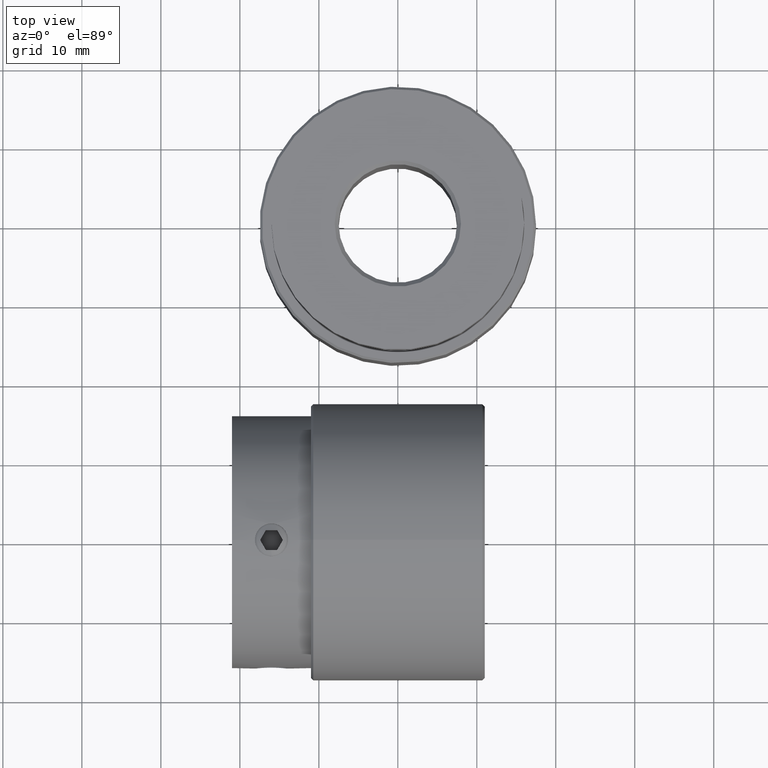
[diagram: clean part render]
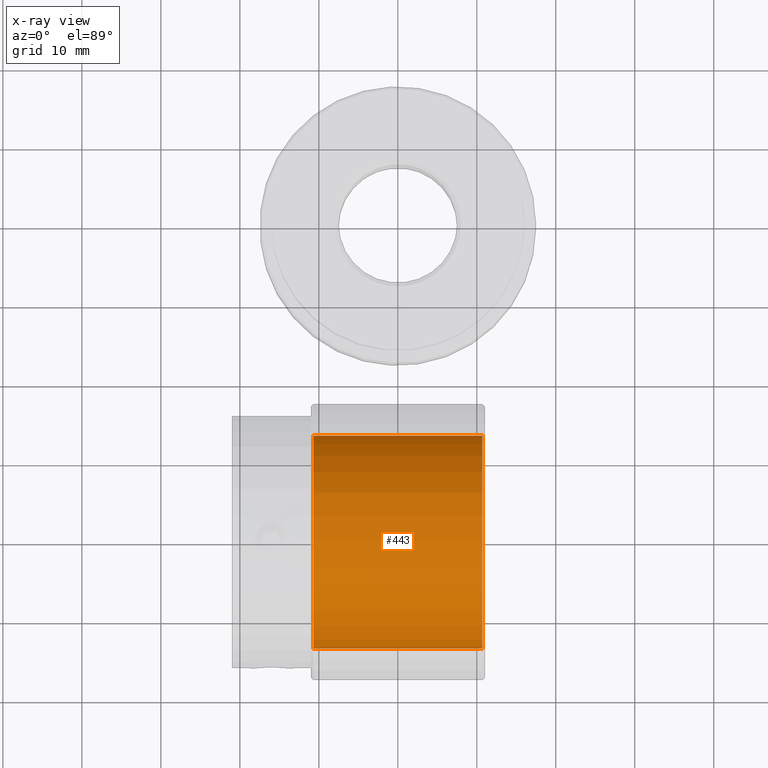
[diagram: x-ray — body ghosted, one internal face saturated and labeled with its STEP entity id]
A machine part, top view, then the same camera in x-ray: the body is ghosted and one INTERNAL B-rep face — a face not visible from any outside direction — is saturated and labeled: STEP entity #443.
In plain terms, the highlighted cylindrical surface (bore or boss wall) has radius 13.5 mm, axis along (1, -0, -0).
Its self-contained STEP definition (entity closure, byte-faithful):
#443 = ADVANCED_FACE( '', ( #593, #594 ), #595, .F. );
#593 = FACE_OUTER_BOUND( '', #793, .T. );
#594 = FACE_OUTER_BOUND( '', #794, .T. );
#595 = CYLINDRICAL_SURFACE( '', #795, 13.5000000000000 );
#793 = EDGE_LOOP( '', ( #1057 ) );
#794 = EDGE_LOOP( '', ( #1058 ) );
#795 = AXIS2_PLACEMENT_3D( '', #1059, #1060, #1061 );
#1057 = ORIENTED_EDGE( '', *, *, #1352, .T. );
#1058 = ORIENTED_EDGE( '', *, *, #1353, .T. );
#1059 = CARTESIAN_POINT( '', ( 11.0000000000000, -40.0000000000000, 11.0000000000000 ) );
#1060 = DIRECTION( '', ( 1.00000000000000, -0.000000000000000, -6.12323399573677E-017 ) );
#1061 = DIRECTION( '', ( 6.12323399573677E-017, 0.000000000000000, 1.00000000000000 ) );
#1352 = EDGE_CURVE( '', #1497, #1497, #1498, .T. );
#1353 = EDGE_CURVE( '', #1499, #1499, #1500, .F. );
#1497 = VERTEX_POINT( '', #2129 );
#1498 = CIRCLE( '', #2130, 13.5000000000000 );
#1499 = VERTEX_POINT( '', #2131 );
#1500 = CIRCLE( '', #2132, 13.5000000000000 );
#2129 = CARTESIAN_POINT( '', ( -10.7000000000000, -40.0000000000000, 24.5000000000000 ) );
#2130 = AXIS2_PLACEMENT_3D( '', #2460, #2461, #2462 );
#2131 = CARTESIAN_POINT( '', ( 10.7000000000000, -40.0000000000000, 24.5000000000000 ) );
#2132 = AXIS2_PLACEMENT_3D( '', #2463, #2464, #2465 );
#2460 = CARTESIAN_POINT( '', ( -10.7000000000000, -40.0000000000000, 11.0000000000000 ) );
#2461 = DIRECTION( '', ( -1.00000000000000, 0.000000000000000, 6.12323399573677E-017 ) );
#2462 = DIRECTION( '', ( 6.12323399573677E-017, 0.000000000000000, 1.00000000000000 ) );
#2463 = CARTESIAN_POINT( '', ( 10.7000000000000, -40.0000000000000, 11.0000000000000 ) );
#2464 = DIRECTION( '', ( -1.00000000000000, 0.000000000000000, 6.12323399573677E-017 ) );
#2465 = DIRECTION( '', ( 6.12323399573677E-017, 0.000000000000000, 1.00000000000000 ) );